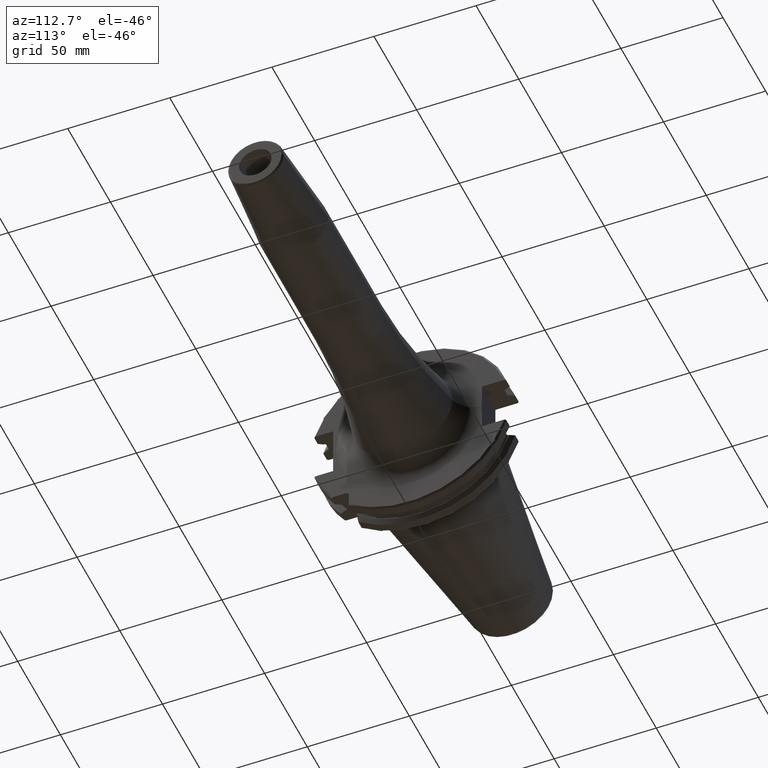
[diagram: clean part render]
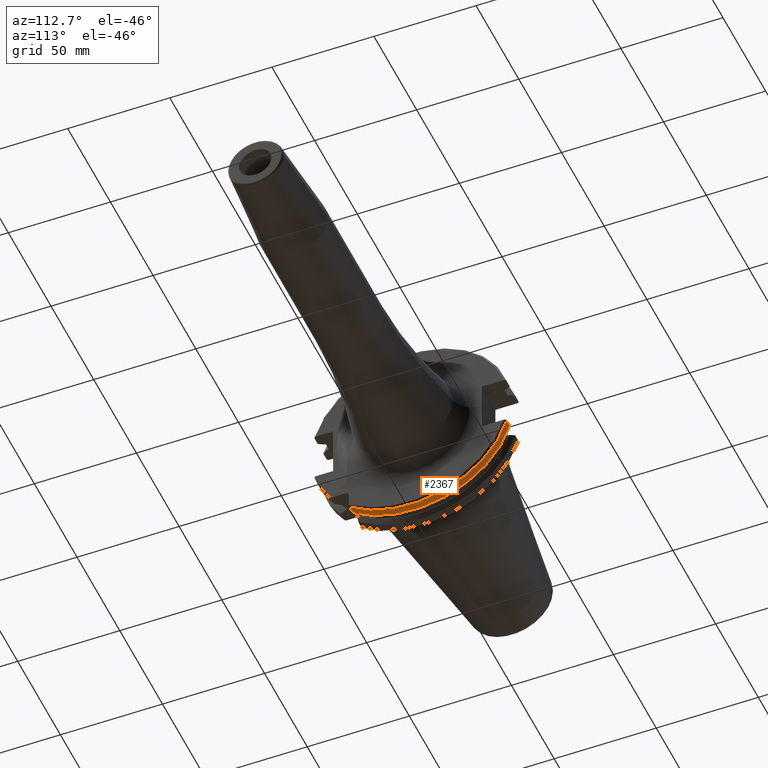
[diagram: same view with one face highlighted and labeled with its STEP entity id]
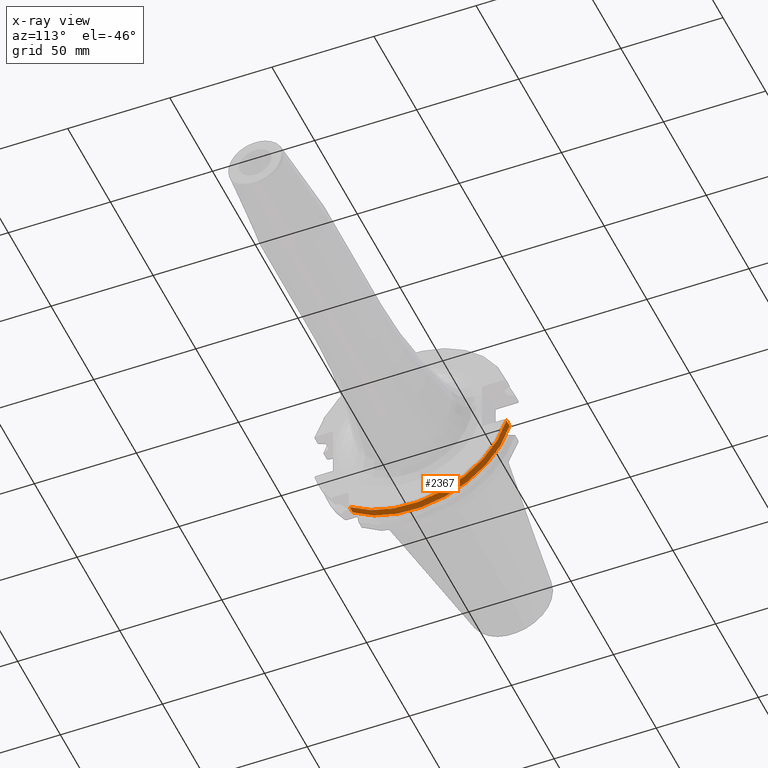
[diagram: x-ray of the same camera — body ghosted, the highlighted face saturated]
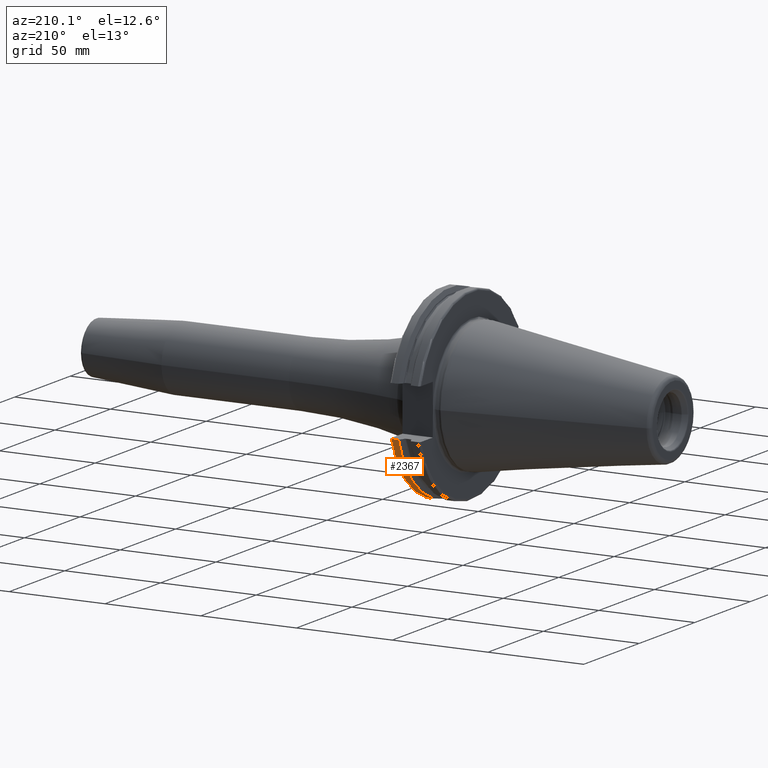
[diagram: same view with one face highlighted and labeled with its STEP entity id]
A machine part, auxiliary view. The second image highlights one B-rep face of the part: STEP entity #2367.
The next image is the same camera in x-ray: the body ghosted, the highlighted face saturated — about 0% of this face is hidden behind the body in this view.
A second angle (auxiliary view) of the same face is appended — the face is thin or edge-on in the first view.
In plain terms, the highlighted cylindrical surface (partial cylindrical patch) has radius 48.7375 mm, axis along (1, 0, 0).
Its self-contained STEP definition (entity closure, byte-faithful):
#689=DIRECTION('',(1.E0,0.E0,0.E0));
#690=VECTOR('',#689,3.634621614173E0);
#691=CARTESIAN_POINT('',(1.441537838583E1,4.699929686974E1,-1.29E1));
#692=LINE('',#691,#690);
#693=CARTESIAN_POINT('',(1.441537838583E1,0.E0,0.E0));
#694=DIRECTION('',(1.E0,0.E0,0.E0));
#695=DIRECTION('',(0.E0,-6.124647345473E-1,-7.904979120376E-1));
#696=AXIS2_PLACEMENT_3D('',#693,#694,#695);
#698=DIRECTION('',(1.E0,0.E0,0.E0));
#699=VECTOR('',#698,3.634621614173E0);
#700=CARTESIAN_POINT('',(1.441537838583E1,-2.985E1,-3.852689198793E1));
#701=LINE('',#700,#699);
#702=CARTESIAN_POINT('',(1.805E1,0.E0,0.E0));
#703=DIRECTION('',(-1.E0,0.E0,0.E0));
#704=DIRECTION('',(0.E0,9.643354064066E-1,-2.646832521159E-1));
#705=AXIS2_PLACEMENT_3D('',#702,#703,#704);
#828=CARTESIAN_POINT('',(1.441537838583E1,4.699929686974E1,-1.29E1));
#840=CARTESIAN_POINT('',(1.441537838583E1,-2.985E1,-3.852689198793E1));
#1362=VERTEX_POINT('',#828);
#1412=CARTESIAN_POINT('',(1.805E1,4.699929686974E1,-1.29E1));
#1413=VERTEX_POINT('',#1412);
#1437=CARTESIAN_POINT('',(1.805E1,-2.985E1,-3.852689198793E1));
#1438=VERTEX_POINT('',#1437);
#1462=VERTEX_POINT('',#840);
#2355=CARTESIAN_POINT('',(-1.076325E2,0.E0,0.E0));
#2356=DIRECTION('',(1.E0,0.E0,0.E0));
#2357=DIRECTION('',(0.E0,-1.E0,0.E0));
#2358=AXIS2_PLACEMENT_3D('',#2355,#2356,#2357);
#2359=CYLINDRICAL_SURFACE('',#2358,4.87375E1);
#2360=ORIENTED_EDGE('',*,*,#1928,.F.);
#2362=ORIENTED_EDGE('',*,*,#2361,.F.);
#2363=ORIENTED_EDGE('',*,*,#2292,.T.);
#2364=ORIENTED_EDGE('',*,*,#2320,.F.);
#2365=EDGE_LOOP('',(#2360,#2362,#2363,#2364));
#2366=FACE_OUTER_BOUND('',#2365,.F.);
#2367=ADVANCED_FACE('',(#2366),#2359,.T.);
#697=CIRCLE('',#696,4.87375E1);
#706=CIRCLE('',#705,4.87375E1);
#1928=EDGE_CURVE('',#1362,#1413,#692,.T.);
#2292=EDGE_CURVE('',#1462,#1438,#701,.T.);
#2320=EDGE_CURVE('',#1413,#1438,#706,.T.);
#2361=EDGE_CURVE('',#1462,#1362,#697,.T.);